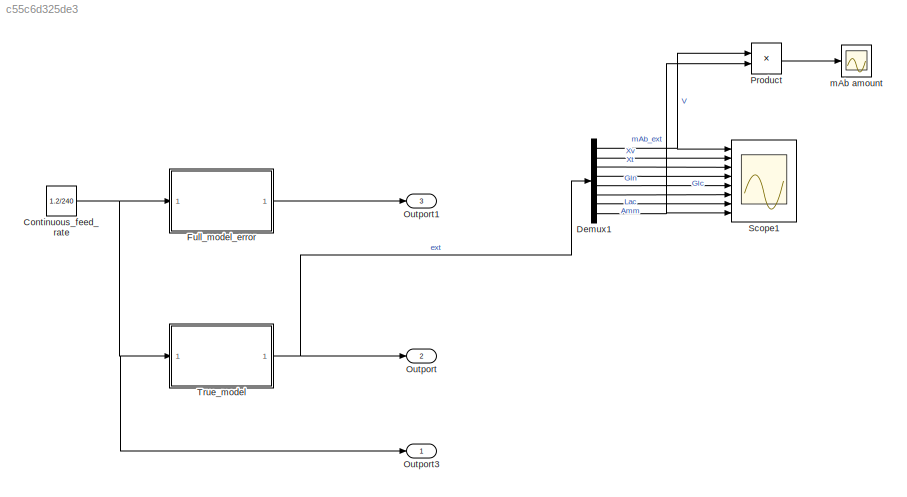
MODEL slx_c55c6d325de3
KIND model
CONFIG AbsTol = auto
CONFIG EnableMultiTasking = off
CONFIG FixedStep = auto
CONFIG MaxStep = auto
CONFIG MinStep = auto
CONFIG RelTol = 1e-3
CONFIG SampleTimeConstraint = Unconstrained
CONFIG SolverName = VariableStepAuto
CONFIG StartTime = 0.0
CONFIG StopTime = 240
BLOCK [Constant] Continuous_feed_rate
  Value = 1.2/240
BLOCK [Demux] Demux1
  Outputs = 8
  Ports = [1, 8]
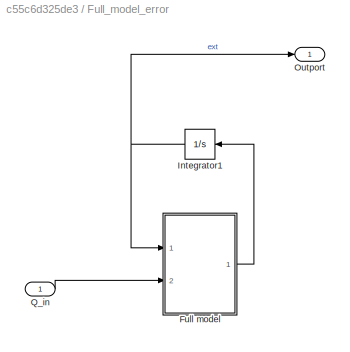
BLOCK [SubSystem] Full_model_error
  Ports = [1, 1]
  RequestExecContextInheritance = off
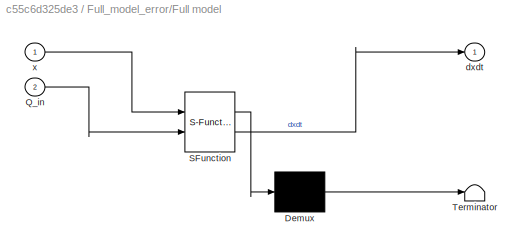
BLOCK [SubSystem] Full_model_error/Full model
  ErrorFcn = Stateflow.Translate.translate
  PermitHierarchicalResolution = ExplicitOnly
  Ports = [2, 1]
  RequestExecContextInheritance = off
  SFBlockType = MATLAB Function
  TreatAsAtomicUnit = on
BLOCK [Demux] Full_model_error/Full model/ Demux 
  Outputs = 1
  Ports = [1, 1]
BLOCK [S-Function] Full_model_error/Full model/ SFunction 
  EnableBusSupport = on
  FunctionName = sf_sfun
  PortCounts = [2 2]
  Ports = [2, 2]
  SFcnIsStateOwnerBlock = off
  SFunctionDeploymentMode = off
  Tag = Stateflow S-Function 1
BLOCK [Terminator] Full_model_error/Full model/ Terminator 
BLOCK [Inport] Full_model_error/Full model/Q_in
  Port = 2
BLOCK [Outport] Full_model_error/Full model/dxdt
  VectorParamsAs1DForOutWhenUnconnected = off
BLOCK [Inport] Full_model_error/Full model/x
BLOCK [Integrator] Full_model_error/Integrator1
  InitialCondition = [0.8;2E+8;2E+8;25;4;0;0;0]
  LimitOutput = on
  LowerSaturationLimit = 0
  Ports = [1, 1]
BLOCK [Outport] Full_model_error/Outport
BLOCK [Inport] Full_model_error/Q_in
BLOCK [Outport] Outport
  Port = 2
BLOCK [Outport] Outport1
  Port = 3
BLOCK [Outport] Outport3
BLOCK [Product] Product
  Ports = [2, 1]
BLOCK [Scope] Scope1
  Floating = off
  NumInputPorts = 8
  Ports = [8]
  ScopeSpecificationString = Simulink.scopes.TimeScopeBlockCfg('CurrentConfiguration', extmgr.ConfigurationSet(extmgr.Configuration('Core','General UI',true),extmgr.Configuration('Core','Source UI',true),extmgr.Configuration('Sources','WiredSimulink',true,'DataLoggingVariableName','ScopeData1'),extmgr.Configuration('Visuals','Time Domain',true,'SerializedDisplays',{struct('MinYLimReal','0.195','MaxYLimReal','0.245','YLabelRea...<+7130ch>
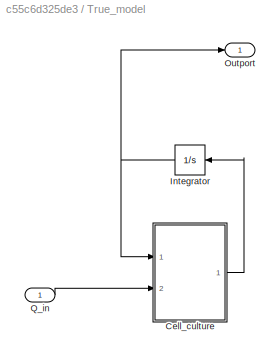
BLOCK [SubSystem] True_model
  Ports = [1, 1]
  RequestExecContextInheritance = off
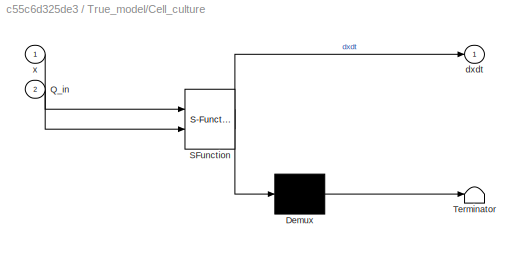
BLOCK [SubSystem] True_model/Cell_culture
  ErrorFcn = Stateflow.Translate.translate
  PermitHierarchicalResolution = ExplicitOnly
  Ports = [2, 1]
  RequestExecContextInheritance = off
  SFBlockType = MATLAB Function
  TreatAsAtomicUnit = on
BLOCK [Demux] True_model/Cell_culture/ Demux 
  Outputs = 1
  Ports = [1, 1]
BLOCK [S-Function] True_model/Cell_culture/ SFunction 
  EnableBusSupport = on
  FunctionName = sf_sfun
  PortCounts = [2 2]
  Ports = [2, 2]
  SFcnIsStateOwnerBlock = off
  SFunctionDeploymentMode = off
  Tag = Stateflow S-Function 3
BLOCK [Terminator] True_model/Cell_culture/ Terminator 
BLOCK [Inport] True_model/Cell_culture/Q_in
  Port = 2
BLOCK [Outport] True_model/Cell_culture/dxdt
  VectorParamsAs1DForOutWhenUnconnected = off
BLOCK [Inport] True_model/Cell_culture/x
BLOCK [Integrator] True_model/Integrator
  InitialCondition = [0.8;2E+8;2E+8;25;4;0;0;0]
  LimitOutput = on
  LowerSaturationLimit = 0
  Ports = [1, 1]
BLOCK [Outport] True_model/Outport
BLOCK [Inport] True_model/Q_in
BLOCK [Scope] mAb amount
  Floating = off
  NumInputPorts = 1
  Ports = [1]
  ScopeSpecificationString = Simulink.scopes.TimeScopeBlockCfg('CurrentConfiguration', extmgr.ConfigurationSet(extmgr.Configuration('Core','General UI',true),extmgr.Configuration('Core','Source UI',true),extmgr.Configuration('Sources','WiredSimulink',true),extmgr.Configuration('Visuals','Time Domain',true,'SerializedDisplays',{struct('MinYLimReal','-88.54413','MaxYLimReal','996.8972','YLabelReal','','MinYLimMag','0.00000','Ma...<+1652ch>
NET Continuous_feed_rate:1 -> Full_model_error:1, Outport3:1, True_model:1
NET Demux1:1 -> Product:1, Scope1:1
LINE Demux1:2 -> Scope1:2
LINE Demux1:3 -> Scope1:3
LINE Demux1:4 -> Scope1:4
LINE Demux1:5 -> Scope1:5
LINE Demux1:6 -> Scope1:6
LINE Demux1:7 -> Scope1:7
NET Demux1:8 -> Product:2, Scope1:8
LINE Full_model_error/Full model:1 -> Full_model_error/Integrator1:1
NET Full_model_error/Integrator1:1 -> Full_model_error/Full model:1, Full_model_error/Outport:1
LINE Full_model_error/Q_in:1 -> Full_model_error/Full model:2
LINE Full_model_error:1 -> Outport1:1
LINE Product:1 -> mAb amount:1
LINE True_model/Cell_culture:1 -> True_model/Integrator:1
NET True_model/Integrator:1 -> True_model/Cell_culture:1, True_model/Outport:1
LINE True_model/Q_in:1 -> True_model/Cell_culture:2
NET True_model:1 -> Demux1:1, Outport:1
note: NET lines group one-source signal fan-out (src -> all destinations, sorted); 1:1 wires keep LINE
CHART Full_model_error/Full model states=1 transitions=1
  STATE_LABEL 'eML_blk_kernel()'
  STATE_LABEL 'SCRIPT:\nfunction dxdt = fcn(x,Q_in)\ndxdt = deTremblay1992StateFcnError(x,Q_in);\nend'
CHART True_model/Cell_culture states=1 transitions=1
  STATE_LABEL 'eML_blk_kernel()'
  STATE_LABEL 'SCRIPT:\nfunction dxdt = fcn(x,Q_in)\ndxdt = deTremblay1992StateFcn(x,Q_in);\nend'
CHART  states=0 transitions=0
CHART  states=0 transitions=0
